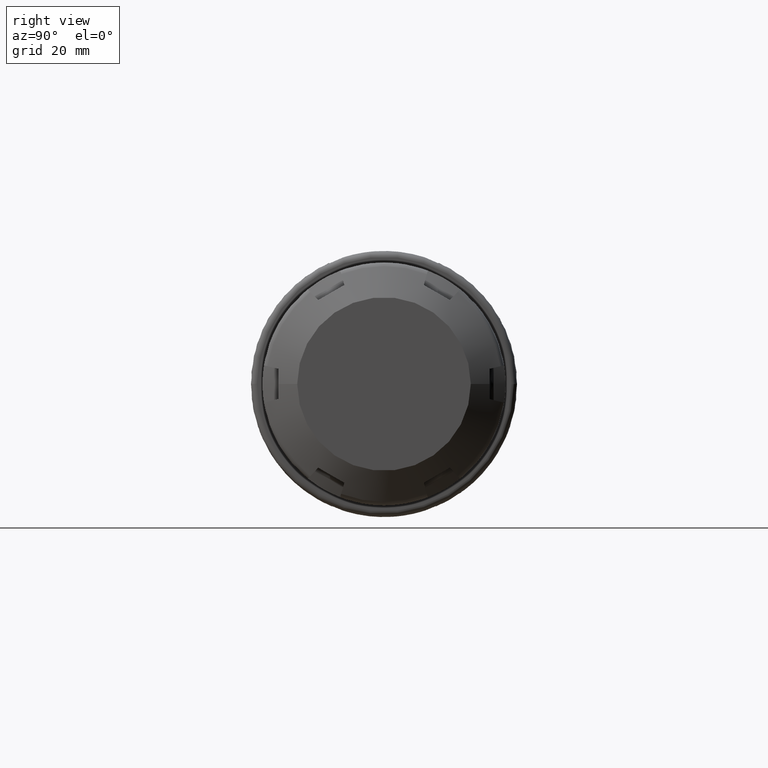
[diagram: clean part render]
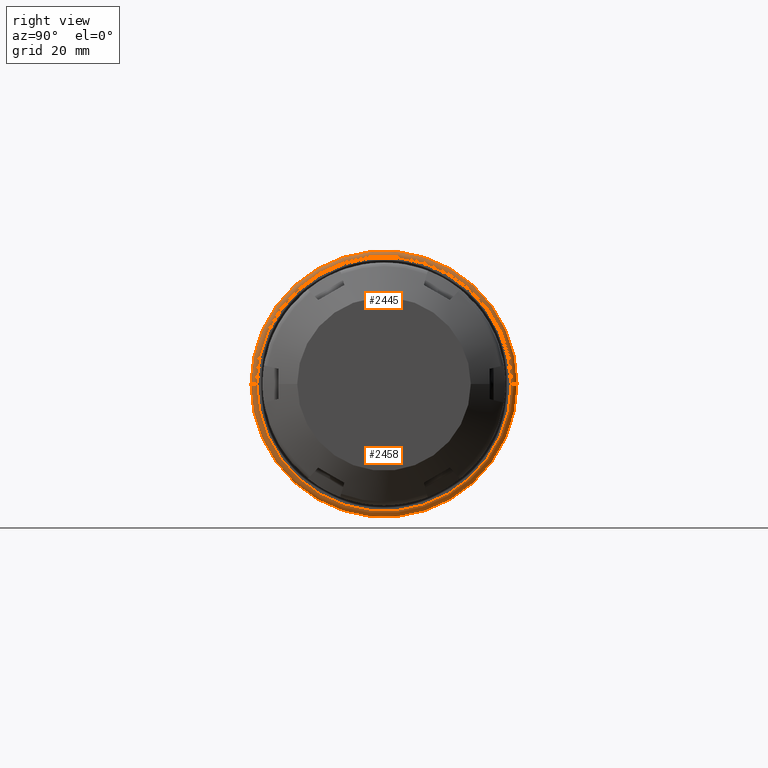
[diagram: same view with one multi-face feature highlighted, each face labeled with its STEP entity id]
A machine part, right view. The highlighted faces form ONE feature: a constant-radius fillet chain: 2 tangent blend faces with common blend radius 1 mm. The faces share edges in the B-rep.
Their STEP definitions:
[1] entity #2458 (Torus):
#235=CARTESIAN_POINT('',(2.1E1,0.E0,0.E0));
#236=DIRECTION('',(-1.E0,0.E0,0.E0));
#237=DIRECTION('',(0.E0,1.E0,0.E0));
#238=AXIS2_PLACEMENT_3D('',#235,#236,#237);
#807=CARTESIAN_POINT('',(2.1E1,2.199E1,0.E0));
#808=DIRECTION('',(0.E0,0.E0,1.E0));
#809=DIRECTION('',(1.E0,0.E0,0.E0));
#810=AXIS2_PLACEMENT_3D('',#807,#808,#809);
#812=CARTESIAN_POINT('',(2.1E1,-2.199E1,0.E0));
#813=DIRECTION('',(0.E0,0.E0,-1.E0));
#814=DIRECTION('',(1.E0,0.E0,0.E0));
#815=AXIS2_PLACEMENT_3D('',#812,#813,#814);
#817=CARTESIAN_POINT('',(2.2E1,0.E0,0.E0));
#818=DIRECTION('',(-1.E0,0.E0,0.E0));
#819=DIRECTION('',(0.E0,1.E0,0.E0));
#820=AXIS2_PLACEMENT_3D('',#817,#818,#819);
#1200=CARTESIAN_POINT('',(2.1E1,2.299E1,0.E0));
#1201=VERTEX_POINT('',#1200);
#1202=CARTESIAN_POINT('',(2.1E1,-2.299E1,0.E0));
#1203=VERTEX_POINT('',#1202);
#1270=CARTESIAN_POINT('',(2.2E1,2.199E1,0.E0));
#1271=VERTEX_POINT('',#1270);
#1272=CARTESIAN_POINT('',(2.2E1,-2.199E1,0.E0));
#1273=VERTEX_POINT('',#1272);
#2446=CARTESIAN_POINT('',(2.1E1,0.E0,0.E0));
#2447=DIRECTION('',(1.E0,0.E0,0.E0));
#2448=DIRECTION('',(0.E0,-1.E0,0.E0));
#2449=AXIS2_PLACEMENT_3D('',#2446,#2447,#2448);
#2450=TOROIDAL_SURFACE('',#2449,2.199E1,1.E0);
#2451=ORIENTED_EDGE('',*,*,#2436,.T.);
#2452=ORIENTED_EDGE('',*,*,#1690,.T.);
#2453=ORIENTED_EDGE('',*,*,#2440,.F.);
#2455=ORIENTED_EDGE('',*,*,#2454,.F.);
#2456=EDGE_LOOP('',(#2451,#2452,#2453,#2455));
#2457=FACE_OUTER_BOUND('',#2456,.F.);
#2458=ADVANCED_FACE('',(#2457),#2450,.T.);
#239=CIRCLE('',#238,2.299E1);
#811=CIRCLE('',#810,1.E0);
#816=CIRCLE('',#815,1.E0);
#821=CIRCLE('',#820,2.199E1);
#1690=EDGE_CURVE('',#1201,#1203,#239,.T.);
#2436=EDGE_CURVE('',#1271,#1201,#811,.T.);
#2440=EDGE_CURVE('',#1273,#1203,#816,.T.);
#2454=EDGE_CURVE('',#1271,#1273,#821,.T.);
[2] entity #2445 (Torus):
#778=CARTESIAN_POINT('',(2.1E1,0.E0,0.E0));
#779=DIRECTION('',(1.E0,0.E0,0.E0));
#780=DIRECTION('',(0.E0,1.E0,0.E0));
#781=AXIS2_PLACEMENT_3D('',#778,#779,#780);
#802=CARTESIAN_POINT('',(2.2E1,0.E0,0.E0));
#803=DIRECTION('',(1.E0,0.E0,0.E0));
#804=DIRECTION('',(0.E0,1.E0,0.E0));
#805=AXIS2_PLACEMENT_3D('',#802,#803,#804);
#807=CARTESIAN_POINT('',(2.1E1,2.199E1,0.E0));
#808=DIRECTION('',(0.E0,0.E0,1.E0));
#809=DIRECTION('',(1.E0,0.E0,0.E0));
#810=AXIS2_PLACEMENT_3D('',#807,#808,#809);
#812=CARTESIAN_POINT('',(2.1E1,-2.199E1,0.E0));
#813=DIRECTION('',(0.E0,0.E0,-1.E0));
#814=DIRECTION('',(1.E0,0.E0,0.E0));
#815=AXIS2_PLACEMENT_3D('',#812,#813,#814);
#1200=CARTESIAN_POINT('',(2.1E1,2.299E1,0.E0));
#1201=VERTEX_POINT('',#1200);
#1202=CARTESIAN_POINT('',(2.1E1,-2.299E1,0.E0));
#1203=VERTEX_POINT('',#1202);
#1270=CARTESIAN_POINT('',(2.2E1,2.199E1,0.E0));
#1271=VERTEX_POINT('',#1270);
#1272=CARTESIAN_POINT('',(2.2E1,-2.199E1,0.E0));
#1273=VERTEX_POINT('',#1272);
#2431=CARTESIAN_POINT('',(2.1E1,0.E0,0.E0));
#2432=DIRECTION('',(1.E0,0.E0,0.E0));
#2433=DIRECTION('',(0.E0,-1.E0,0.E0));
#2434=AXIS2_PLACEMENT_3D('',#2431,#2432,#2433);
#2435=TOROIDAL_SURFACE('',#2434,2.199E1,1.E0);
#2437=ORIENTED_EDGE('',*,*,#2436,.F.);
#2439=ORIENTED_EDGE('',*,*,#2438,.T.);
#2441=ORIENTED_EDGE('',*,*,#2440,.T.);
#2442=ORIENTED_EDGE('',*,*,#2422,.F.);
#2443=EDGE_LOOP('',(#2437,#2439,#2441,#2442));
#2444=FACE_OUTER_BOUND('',#2443,.F.);
#2445=ADVANCED_FACE('',(#2444),#2435,.T.);
#782=CIRCLE('',#781,2.299E1);
#806=CIRCLE('',#805,2.199E1);
#811=CIRCLE('',#810,1.E0);
#816=CIRCLE('',#815,1.E0);
#2422=EDGE_CURVE('',#1201,#1203,#782,.T.);
#2436=EDGE_CURVE('',#1271,#1201,#811,.T.);
#2438=EDGE_CURVE('',#1271,#1273,#806,.T.);
#2440=EDGE_CURVE('',#1273,#1203,#816,.T.);